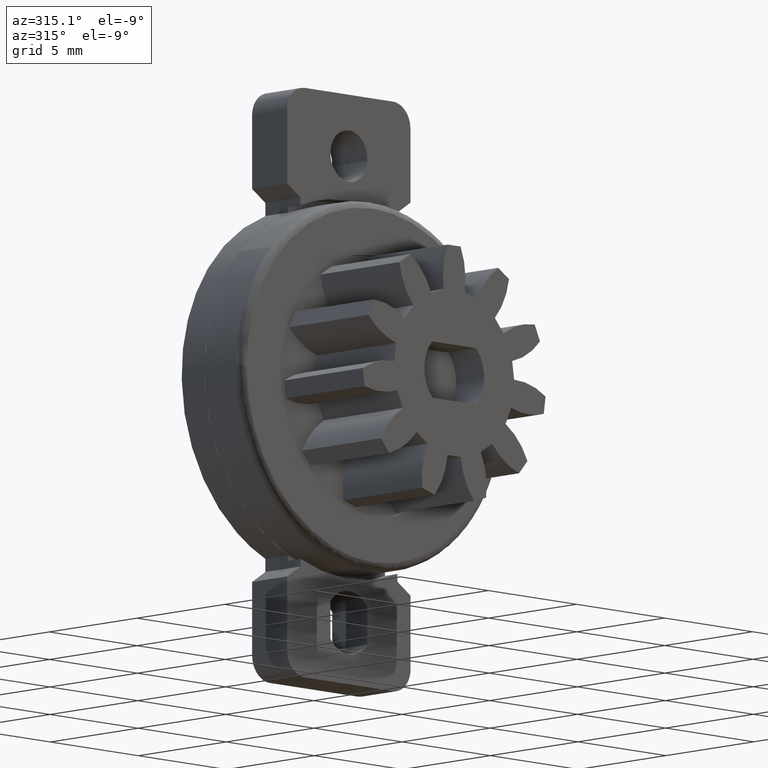
[diagram: clean part render]
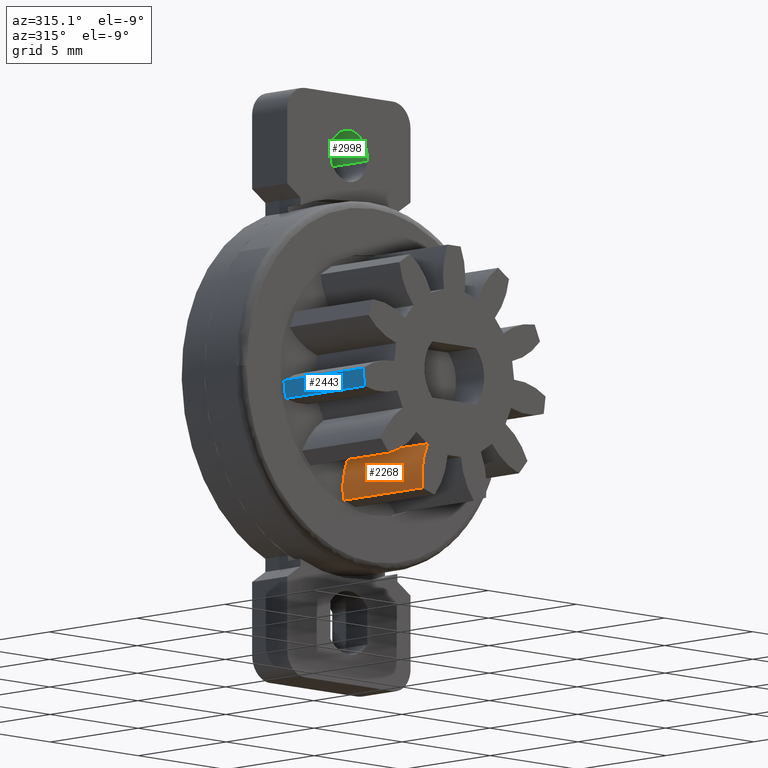
[diagram: same view with three faces highlighted in distinct colors, each labeled with its STEP entity id]
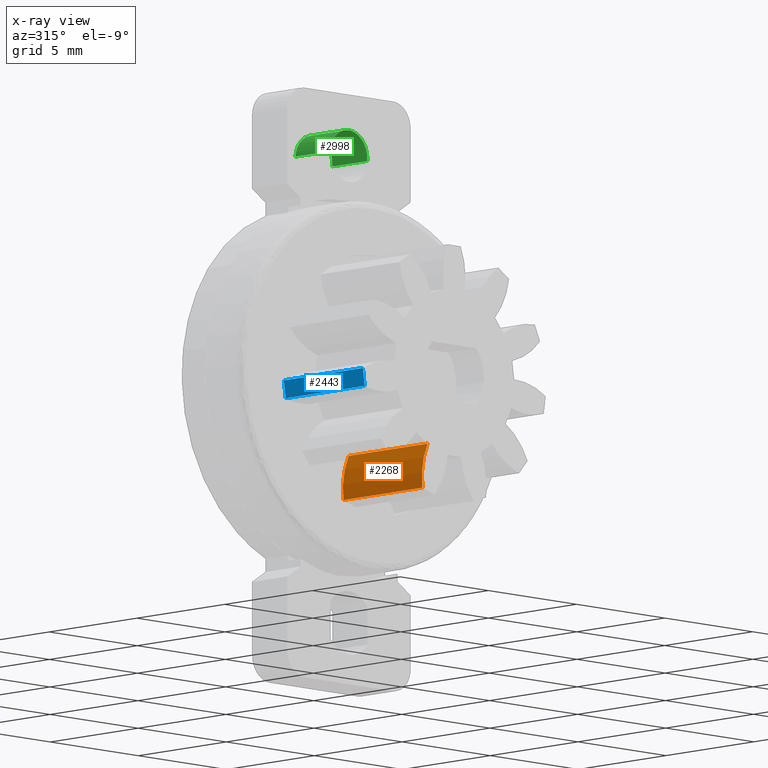
[diagram: x-ray of the same camera — body ghosted, the three highlighted faces saturated]
A machine part, auxiliary view with three faces highlighted in distinct colors.
The next image is the same camera in x-ray (body ghosted, the three faces saturated) — at least one of them is partly hidden behind the body in this view.
Their STEP definitions:

[orange] entity #2268 — the highlighted face is a freeform B-spline surface patch.
#689=CARTESIAN_POINT('',(-1.509826490109995,-8.0,-3.046378828997160));
#690=VERTEX_POINT('',#689);
#704=CARTESIAN_POINT('',(-1.809481019557425,-8.0,-4.875015737396280));
#705=VERTEX_POINT('',#704);
#706=CARTESIAN_POINT('',(-1.509826490109993,-8.0,-3.046378828997160));
#707=CARTESIAN_POINT('',(-1.940191202342365,-8.0,-3.914726256122141));
#708=CARTESIAN_POINT('',(-1.809481019557416,-8.0,-4.875015737396279));
#716=(BOUNDED_CURVE()B_SPLINE_CURVE(2,(#706,#707,#708),.UNSPECIFIED.,.F.,.U.)CURVE()GEOMETRIC_REPRESENTATION_ITEM()QUASI_UNIFORM_CURVE()RATIONAL_B_SPLINE_CURVE((1.0,0.956011273868736,1.0))REPRESENTATION_ITEM(''));
#717=EDGE_CURVE('',#690,#705,#716,.T.);
#1363=CARTESIAN_POINT('',(-1.809481019557425,-3.499999999999950,-4.875015737396280));
#1364=VERTEX_POINT('',#1363);
#1378=CARTESIAN_POINT('',(-1.509826490109995,-3.499999999999950,-3.046378828997160));
#1379=VERTEX_POINT('',#1378);
#1380=CARTESIAN_POINT('',(-1.509826490109993,-3.499999999999950,-3.046378828997160));
#1381=CARTESIAN_POINT('',(-1.940191202342365,-3.499999999999950,-3.914726256122141));
#1382=CARTESIAN_POINT('',(-1.809481019557416,-3.499999999999950,-4.875015737396279));
#1390=(BOUNDED_CURVE()B_SPLINE_CURVE(2,(#1380,#1381,#1382),.UNSPECIFIED.,.F.,.U.)CURVE()GEOMETRIC_REPRESENTATION_ITEM()QUASI_UNIFORM_CURVE()RATIONAL_B_SPLINE_CURVE((1.0,0.956011273868736,1.0))REPRESENTATION_ITEM(''));
#1391=EDGE_CURVE('',#1379,#1364,#1390,.T.);
#2234=CARTESIAN_POINT('',(-1.809481019557425,-3.499999999999950,-4.875015737396280));
#2235=CARTESIAN_POINT('',(-1.809481019557425,-8.0,-4.875015737396280));
#2236=QUASI_UNIFORM_CURVE('',1,(#2234,#2235),.UNSPECIFIED.,.F.,.U.);
#2237=EDGE_CURVE('',#1364,#705,#2236,.T.);
#2244=CARTESIAN_POINT('',(-1.795733686828417,-3.387499999999950,-4.966062273070525));
#2245=CARTESIAN_POINT('',(-1.795733686828417,-8.115312500000002,-4.966062273070525));
#2246=CARTESIAN_POINT('',(-1.971074420437967,-3.387499999999949,-3.909378974279751));
#2247=CARTESIAN_POINT('',(-1.971074420437967,-8.115312500000002,-3.909378974279751));
#2248=CARTESIAN_POINT('',(-1.467487545928572,-3.387499999999949,-2.964009085491270));
#2249=CARTESIAN_POINT('',(-1.467487545928572,-8.115312500000002,-2.964009085491270));
#2257=(BOUNDED_SURFACE()B_SPLINE_SURFACE(1,2,((#2244,#2246,#2248),(#2245,#2247,#2249)),.UNSPECIFIED.,.F.,.F.,.U.)B_SPLINE_SURFACE_WITH_KNOTS((2,2),(3,3),(0.0,4.727812500000052),(0.0,2.083975211491681),.UNSPECIFIED.)GEOMETRIC_REPRESENTATION_ITEM()RATIONAL_B_SPLINE_SURFACE(((0.997786540914082,0.942072450817485,0.991757776564649),(0.997786540914082,0.942072450817485,0.991757776564649)))REPRESENTATION_ITEM('')SURFACE());
#2258=ORIENTED_EDGE('',*,*,#717,.F.);
#2259=CARTESIAN_POINT('',(-1.509826490109995,-3.499999999999950,-3.046378828997160));
#2260=CARTESIAN_POINT('',(-1.509826490109995,-8.0,-3.046378828997160));
#2261=QUASI_UNIFORM_CURVE('',1,(#2259,#2260),.UNSPECIFIED.,.F.,.U.);
#2262=EDGE_CURVE('',#1379,#690,#2261,.T.);
#2263=ORIENTED_EDGE('',*,*,#2262,.F.);
#2264=ORIENTED_EDGE('',*,*,#1391,.T.);
#2265=ORIENTED_EDGE('',*,*,#2237,.T.);
#2266=EDGE_LOOP('',(#2258,#2263,#2264,#2265));
#2267=FACE_OUTER_BOUND('',#2266,.T.);
#2268=ADVANCED_FACE('',(#2267),#2257,.T.);

[blue] entity #2443 — the highlighted face is a freeform B-spline surface patch.
#584=CARTESIAN_POINT('',(-5.186155873497579,-8.0,-0.379192900495937));
#585=VERTEX_POINT('',#584);
#599=CARTESIAN_POINT('',(-5.082911109217150,-8.0,-1.097276016231550));
#600=VERTEX_POINT('',#599);
#601=CARTESIAN_POINT('',(-5.186155873497583,-8.0,-0.379192900495937));
#602=CARTESIAN_POINT('',(-5.159640122854289,-8.0,-0.741844246971735));
#603=CARTESIAN_POINT('',(-5.082911109217140,-8.0,-1.097276016231547));
#611=(BOUNDED_CURVE()B_SPLINE_CURVE(2,(#601,#602,#603),.UNSPECIFIED.,.F.,.U.)CURVE()GEOMETRIC_REPRESENTATION_ITEM()QUASI_UNIFORM_CURVE()RATIONAL_B_SPLINE_CURVE((1.0,0.997564050259824,1.0))REPRESENTATION_ITEM(''));
#612=EDGE_CURVE('',#585,#600,#611,.T.);
#1468=CARTESIAN_POINT('',(-5.082911109217150,-3.499999999999950,-1.097276016231550));
#1469=VERTEX_POINT('',#1468);
#1483=CARTESIAN_POINT('',(-5.186155873497579,-3.499999999999950,-0.379192900495937));
#1484=VERTEX_POINT('',#1483);
#1485=CARTESIAN_POINT('',(-5.186155873497583,-3.499999999999950,-0.379192900495937));
#1486=CARTESIAN_POINT('',(-5.159640122854289,-3.499999999999950,-0.741844246971735));
#1487=CARTESIAN_POINT('',(-5.082911109217140,-3.499999999999950,-1.097276016231547));
#1495=(BOUNDED_CURVE()B_SPLINE_CURVE(2,(#1485,#1486,#1487),.UNSPECIFIED.,.F.,.U.)CURVE()GEOMETRIC_REPRESENTATION_ITEM()QUASI_UNIFORM_CURVE()RATIONAL_B_SPLINE_CURVE((1.0,0.997564050259824,1.0))REPRESENTATION_ITEM(''));
#1496=EDGE_CURVE('',#1484,#1469,#1495,.T.);
#2409=CARTESIAN_POINT('',(-5.082911109217150,-3.499999999999950,-1.097276016231550));
#2410=CARTESIAN_POINT('',(-5.082911109217150,-8.0,-1.097276016231550));
#2411=QUASI_UNIFORM_CURVE('',1,(#2409,#2410),.UNSPECIFIED.,.F.,.U.);
#2412=EDGE_CURVE('',#1469,#600,#2411,.T.);
#2419=CARTESIAN_POINT('',(-5.075147239008687,-3.387499999999948,-1.132643148737723));
#2420=CARTESIAN_POINT('',(-5.075147239008687,-8.115312500000002,-1.132643148737723));
#2421=CARTESIAN_POINT('',(-5.162283971453094,-3.387499999999948,-0.742200891991348));
#2422=CARTESIAN_POINT('',(-5.162283971453094,-8.115312500000000,-0.742200891991348));
#2423=CARTESIAN_POINT('',(-5.188673624962600,-3.387499999999948,-0.343024800295040));
#2424=CARTESIAN_POINT('',(-5.188673624962600,-8.115312500000000,-0.343024800295040));
#2432=(BOUNDED_SURFACE()B_SPLINE_SURFACE(1,2,((#2419,#2421,#2423),(#2420,#2422,#2424)),.UNSPECIFIED.,.F.,.F.,.U.)B_SPLINE_SURFACE_WITH_KNOTS((2,2),(3,3),(0.0,4.727812500000053),(0.140316588074714,0.726374747961015),.UNSPECIFIED.)GEOMETRIC_REPRESENTATION_ITEM()RATIONAL_B_SPLINE_SURFACE(((0.997936024158735,0.994329256446283,0.996599255853511),(0.997936024158735,0.994329256446283,0.996599255853511)))REPRESENTATION_ITEM('')SURFACE());
#2433=ORIENTED_EDGE('',*,*,#612,.F.);
#2434=CARTESIAN_POINT('',(-5.186155873497579,-3.499999999999950,-0.379192900495937));
#2435=CARTESIAN_POINT('',(-5.186155873497579,-8.0,-0.379192900495937));
#2436=QUASI_UNIFORM_CURVE('',1,(#2434,#2435),.UNSPECIFIED.,.F.,.U.);
#2437=EDGE_CURVE('',#1484,#585,#2436,.T.);
#2438=ORIENTED_EDGE('',*,*,#2437,.F.);
#2439=ORIENTED_EDGE('',*,*,#1496,.T.);
#2440=ORIENTED_EDGE('',*,*,#2412,.T.);
#2441=EDGE_LOOP('',(#2433,#2438,#2439,#2440));
#2442=FACE_OUTER_BOUND('',#2441,.T.);
#2443=ADVANCED_FACE('',(#2442),#2432,.T.);

[green] entity #2998 — the highlighted face is a freeform B-spline surface patch.
#2837=CARTESIAN_POINT('',(1.046763200416690,1.040834E-016,9.417617949446449));
#2838=VERTEX_POINT('',#2837);
#2852=CARTESIAN_POINT('',(-1.046763200416690,1.040834E-016,9.582382050553552));
#2853=VERTEX_POINT('',#2852);
#2869=CARTESIAN_POINT('',(-1.046763200416690,-2.0,9.582382050553552));
#2870=VERTEX_POINT('',#2869);
#2871=CARTESIAN_POINT('',(-1.046763200416690,-2.0,9.582382050553552));
#2872=CARTESIAN_POINT('',(-1.046763200416690,1.040834E-016,9.582382050553552));
#2873=QUASI_UNIFORM_CURVE('',1,(#2871,#2872),.UNSPECIFIED.,.F.,.U.);
#2874=EDGE_CURVE('',#2870,#2853,#2873,.T.);
#2893=CARTESIAN_POINT('',(1.046763200416690,-2.0,9.417617949446449));
#2894=VERTEX_POINT('',#2893);
#2908=CARTESIAN_POINT('',(1.046763200416690,-2.0,9.417617949446449));
#2909=CARTESIAN_POINT('',(1.046763200416690,1.040834E-016,9.417617949446449));
#2910=QUASI_UNIFORM_CURVE('',1,(#2908,#2909),.UNSPECIFIED.,.F.,.U.);
#2911=EDGE_CURVE('',#2894,#2838,#2910,.T.);
#2916=CARTESIAN_POINT('',(-1.046763200419784,-2.050000000000000,9.582382050514237));
#2917=CARTESIAN_POINT('',(-0.964381149905546,-2.050000000000001,10.629145250934021));
#2918=CARTESIAN_POINT('',(0.082382050514238,-2.050000000000000,10.546763200419781));
#2919=CARTESIAN_POINT('',(1.129145250934022,-2.050000000000001,10.464381149905547));
#2920=CARTESIAN_POINT('',(1.046763200419784,-2.050000000000000,9.417617949485763));
#2921=CARTESIAN_POINT('',(-1.046763200419784,0.051250000000000,9.582382050514237));
#2922=CARTESIAN_POINT('',(-0.964381149905546,0.051250000000000,10.629145250934021));
#2923=CARTESIAN_POINT('',(0.082382050514238,0.051250000000000,10.546763200419781));
#2924=CARTESIAN_POINT('',(1.129145250934022,0.051250000000000,10.464381149905547));
#2925=CARTESIAN_POINT('',(1.046763200419784,0.051250000000000,9.417617949485763));
#2933=(BOUNDED_SURFACE()B_SPLINE_SURFACE(2,1,((#2916,#2921),(#2917,#2922),(#2918,#2923),(#2919,#2924),(#2920,#2925)),.UNSPECIFIED.,.F.,.F.,.U.)B_SPLINE_SURFACE_WITH_KNOTS((3,2,3),(2,2),(0.0,1.570796326794897,3.141592653589793),(0.0,2.101250000000000),.UNSPECIFIED.)GEOMETRIC_REPRESENTATION_ITEM()RATIONAL_B_SPLINE_SURFACE(((1.0,1.0),(0.707106781186548,0.707106781186548),(1.0,1.0),(0.707106781186548,0.707106781186548),(1.0,1.0)))REPRESENTATION_ITEM('')SURFACE());
#2934=CARTESIAN_POINT('',(0.0,0.0,10.550000000000001));
#2935=VERTEX_POINT('',#2934);
#2936=CARTESIAN_POINT('',(1.046763200416690,0.0,9.417617949446447));
#2937=CARTESIAN_POINT('',(1.050000000000000,0.0,9.458745387622198));
#2938=CARTESIAN_POINT('',(1.050000000000000,0.0,9.500000000000000));
#2939=CARTESIAN_POINT('',(1.050000000000000,0.0,10.550000000000001));
#2940=CARTESIAN_POINT('',(0.0,0.0,10.550000000000001));
#2948=(BOUNDED_CURVE()B_SPLINE_CURVE(2,(#2936,#2937,#2938,#2939,#2940),.UNSPECIFIED.,.F.,.U.)B_SPLINE_CURVE_WITH_KNOTS((3,2,3),(0.236331300626329,0.250000000000000,0.500000000000000),.UNSPECIFIED.)CURVE()GEOMETRIC_REPRESENTATION_ITEM()RATIONAL_B_SPLINE_CURVE((0.969723356158380,0.983986122573808,1.0,0.707106781186548,1.0))REPRESENTATION_ITEM(''));
#2949=EDGE_CURVE('',#2838,#2935,#2948,.T.);
#2950=ORIENTED_EDGE('',*,*,#2949,.F.);
#2951=ORIENTED_EDGE('',*,*,#2911,.F.);
#2952=CARTESIAN_POINT('',(0.0,-2.0,10.550000000000001));
#2953=VERTEX_POINT('',#2952);
#2954=CARTESIAN_POINT('',(1.046763200416690,-2.000000000000000,9.417617949446447));
#2955=CARTESIAN_POINT('',(1.050000000000000,-2.0,9.458745387622198));
#2956=CARTESIAN_POINT('',(1.050000000000000,-2.0,9.500000000000000));
#2957=CARTESIAN_POINT('',(1.050000000000000,-2.000000000000000,10.550000000000001));
#2958=CARTESIAN_POINT('',(0.0,-2.0,10.550000000000001));
#2966=(BOUNDED_CURVE()B_SPLINE_CURVE(2,(#2954,#2955,#2956,#2957,#2958),.UNSPECIFIED.,.F.,.U.)B_SPLINE_CURVE_WITH_KNOTS((3,2,3),(0.236331300626329,0.250000000000000,0.500000000000000),.UNSPECIFIED.)CURVE()GEOMETRIC_REPRESENTATION_ITEM()RATIONAL_B_SPLINE_CURVE((0.969723356158380,0.983986122573808,1.0,0.707106781186548,1.0))REPRESENTATION_ITEM(''));
#2967=EDGE_CURVE('',#2894,#2953,#2966,.T.);
#2968=ORIENTED_EDGE('',*,*,#2967,.T.);
#2969=CARTESIAN_POINT('',(0.0,-2.0,10.550000000000001));
#2970=CARTESIAN_POINT('',(-0.970610016204550,-2.0,10.550000000000001));
#2971=CARTESIAN_POINT('',(-1.046763200416691,-2.000000000000000,9.582382050553553));
#2979=(BOUNDED_CURVE()B_SPLINE_CURVE(2,(#2969,#2970,#2971),.UNSPECIFIED.,.F.,.U.)B_SPLINE_CURVE_WITH_KNOTS((3,3),(0.500000000000000,0.736331300626328),.UNSPECIFIED.)CURVE()GEOMETRIC_REPRESENTATION_ITEM()RATIONAL_B_SPLINE_CURVE((1.0,0.723120658612740,0.969723356158379))REPRESENTATION_ITEM(''));
#2980=EDGE_CURVE('',#2953,#2870,#2979,.T.);
#2981=ORIENTED_EDGE('',*,*,#2980,.T.);
#2982=ORIENTED_EDGE('',*,*,#2874,.T.);
#2983=CARTESIAN_POINT('',(0.0,0.0,10.550000000000001));
#2984=CARTESIAN_POINT('',(-0.970610016204550,0.0,10.550000000000001));
#2985=CARTESIAN_POINT('',(-1.046763200416691,0.0,9.582382050553553));
#2993=(BOUNDED_CURVE()B_SPLINE_CURVE(2,(#2983,#2984,#2985),.UNSPECIFIED.,.F.,.U.)B_SPLINE_CURVE_WITH_KNOTS((3,3),(0.500000000000000,0.736331300626328),.UNSPECIFIED.)CURVE()GEOMETRIC_REPRESENTATION_ITEM()RATIONAL_B_SPLINE_CURVE((1.0,0.723120658612740,0.969723356158379))REPRESENTATION_ITEM(''));
#2994=EDGE_CURVE('',#2935,#2853,#2993,.T.);
#2995=ORIENTED_EDGE('',*,*,#2994,.F.);
#2996=EDGE_LOOP('',(#2950,#2951,#2968,#2981,#2982,#2995));
#2997=FACE_OUTER_BOUND('',#2996,.T.);
#2998=ADVANCED_FACE('',(#2997),#2933,.F.);